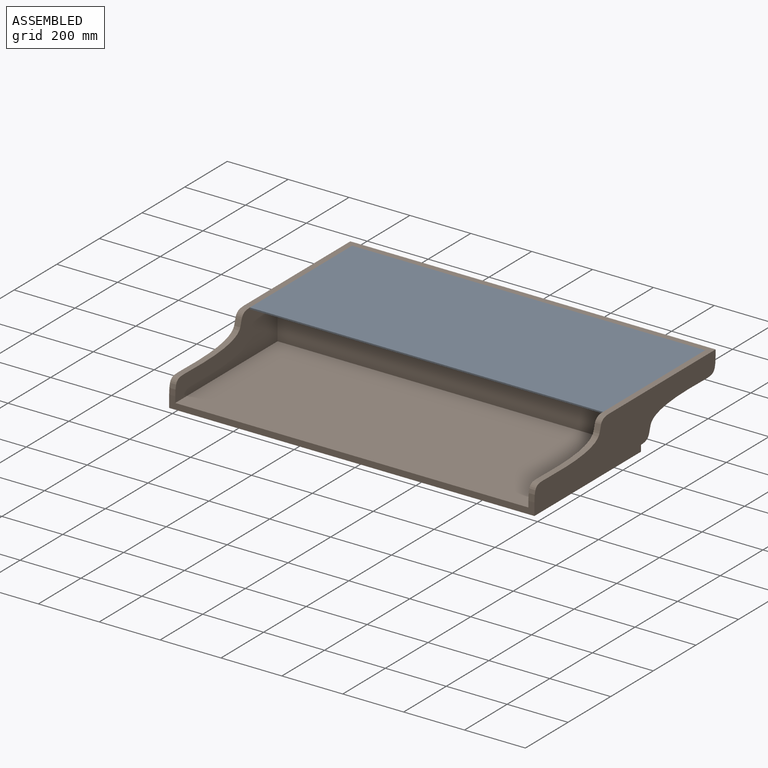
[diagram: assembled view]
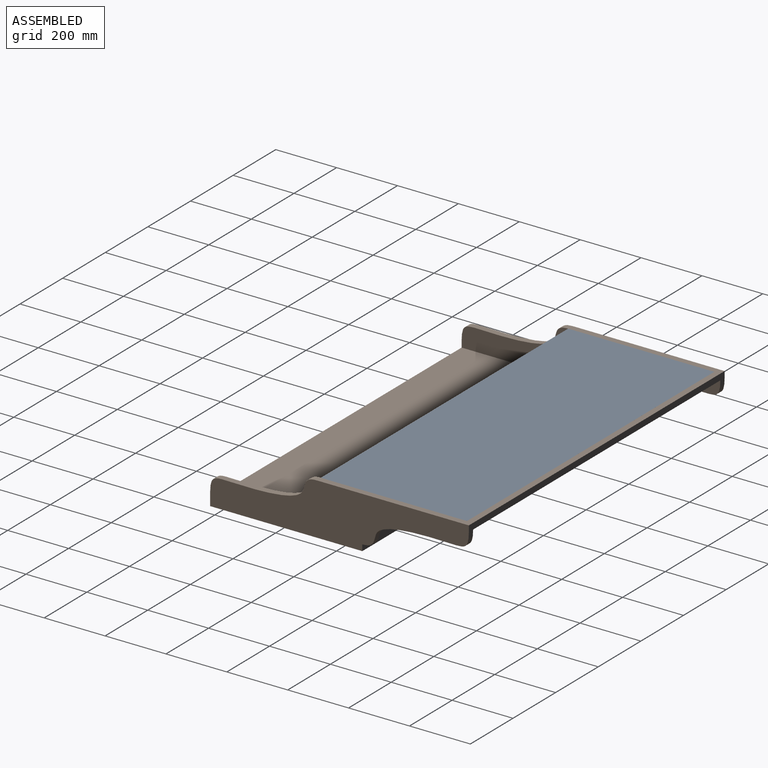
[diagram: assembled view, second angle]
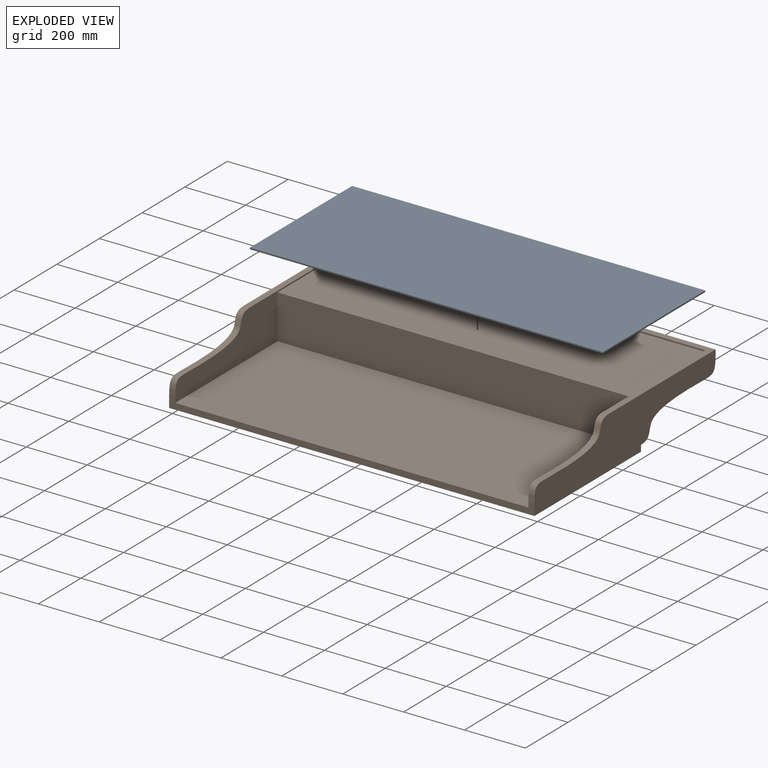
[diagram: exploded view]
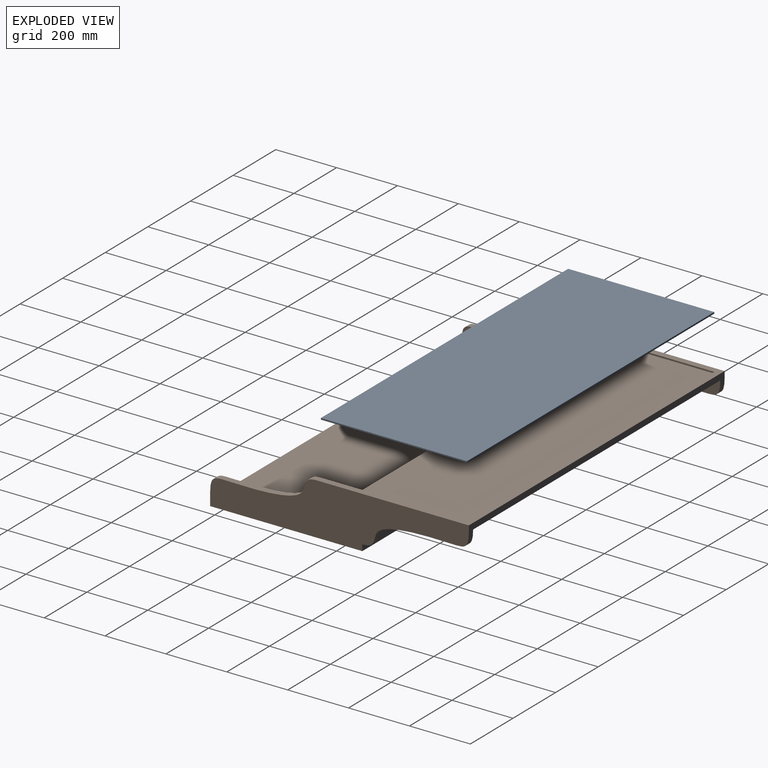
[diagram: exploded view, second angle]
ASSEMBLY  parts=2 mates=2
PART A: 6 faces, bbox 1160x480x5 mm
  f0: plane 1160x5mm, normal (0,1,0), area 5800mm2, adj f1,f3,f4,f5
  f1: plane 480x5mm, normal (-1,0,0), area 2400mm2, adj f0,f2,f4,f5
  f2: plane 1160x5mm, normal (0,-1,0), area 5800mm2, adj f1,f3,f4,f5
  f3: plane 480x5mm, normal (1,0,0), area 2400mm2, adj f0,f2,f4,f5
  f4: plane 1160x480mm, normal (0,0,1), area 556800mm2, adj f0,f1,f2,f3
  f5: plane 1160x480mm, normal (0,0,-1), area 556800mm2, adj f0,f1,f2,f3
PART B: 20 faces, bbox 1200x850x170 mm
  f0: plane 1160x480mm, normal (0,0,1), area 556800mm2, adj f1,f3,f15,f16
  f1: plane 830x150mm, normal (-1,0,0), area 49923.2mm2, adj f0,f3,f6,f7,f16,f17,f19
  f2: plane 350x130mm, normal (1,0,0), area 21673.2mm2, adj f10,f13,f18
  f3: plane 1200x40mm, normal (0,-1,0), area 24800mm2, adj f0,f1,f7,f9,f11,f12,f14,f15
  f4: extruded ~350x130mm, area 8437.4mm2, adj f5,f8,f9,f10
  f5: plane 1200x20mm, normal (0,1,0), area 24000mm2, adj f4,f6,f9,f11,f13,f18
  f6: plane 1200x500mm, normal (0,0,1), area 43200mm2, adj f1,f5,f7,f9,f11,f14,f15,f19
  f7: extruded ~350x130mm, area 8437.4mm2, adj f1,f3,f6,f9
  f8: plane 350x130mm, normal (-1,0,0), area 21672.8mm2, adj f4,f10,f18
  f9: plane 850x170mm, normal (1,0,0), area 89845.4mm2, adj f3,f4,f5,f6,f7,f10,f12
  f10: plane 1200x150mm, normal (0,1,0), area 174800mm2, adj f2,f4,f8,f9,f11,f12,f13,f18
  f11: plane 850x170mm, normal (-1,0,0), area 89845.4mm2, adj f3,f5,f6,f10,f12,f13,f14
  f12: plane 1200x500mm, normal (0,0,-1), area 600000mm2, adj f3,f9,f10,f11
  f13: extruded ~350x130mm, area 8437.4mm2, adj f2,f5,f10,f11
  f14: extruded ~350x130mm, area 8437.4mm2, adj f3,f6,f11,f15
  f15: plane 830x150mm, normal (1,0,0), area 49922.3mm2, adj f0,f3,f6,f14,f16,f17,f19
  f16: plane 1160x145mm, normal (0,-1,0), area 168200mm2, adj f0,f1,f15,f17
  f17: plane 1160x350mm, normal (0,0,1), area 406000mm2, adj f1,f15,f16,f19
  f18: plane 1160x350mm, normal (0,0,-1), area 406000mm2, adj f2,f5,f8,f10
  f19: plane 1160x5mm, normal (0,-1,0), area 5800mm2, adj f1,f6,f15,f17
PLACE A t=(0,-65,0)mm
PLACE B t=(0,-415,-145)mm
MATE planar A.f0 <-> B.f19  axis (0,1,0) through (0,415,2.5)mm
MATE planar B.f17 <-> A.f5  axis (0,0,1) through (0,240,0)mm
